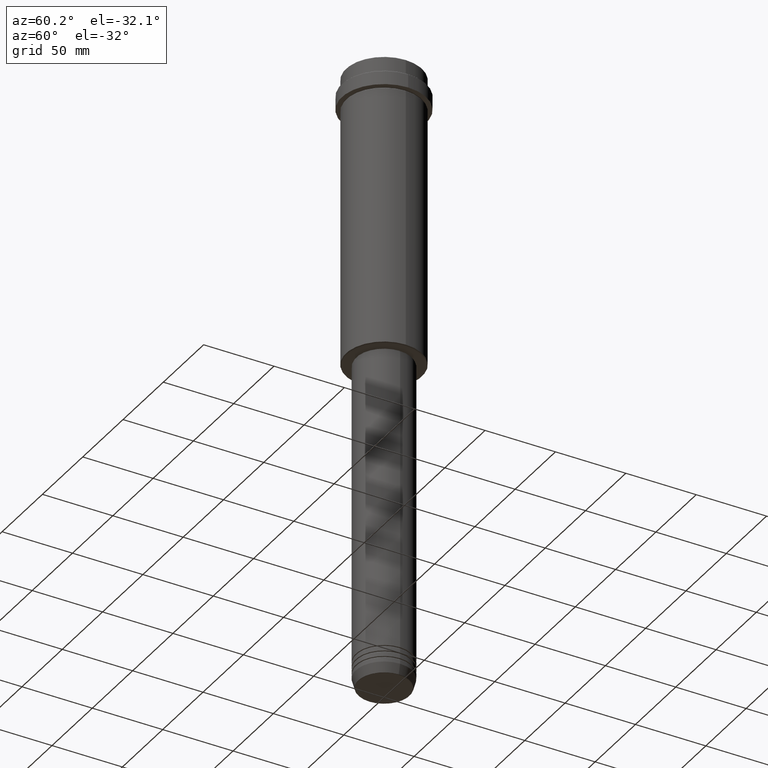
[diagram: clean part render]
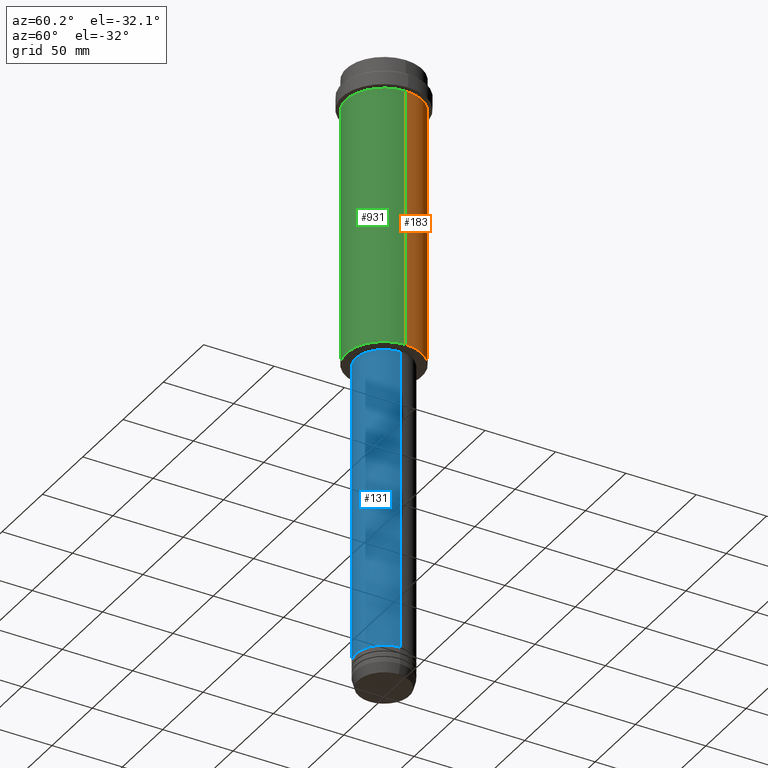
[diagram: same view with three faces highlighted in distinct colors, each labeled with its STEP entity id]
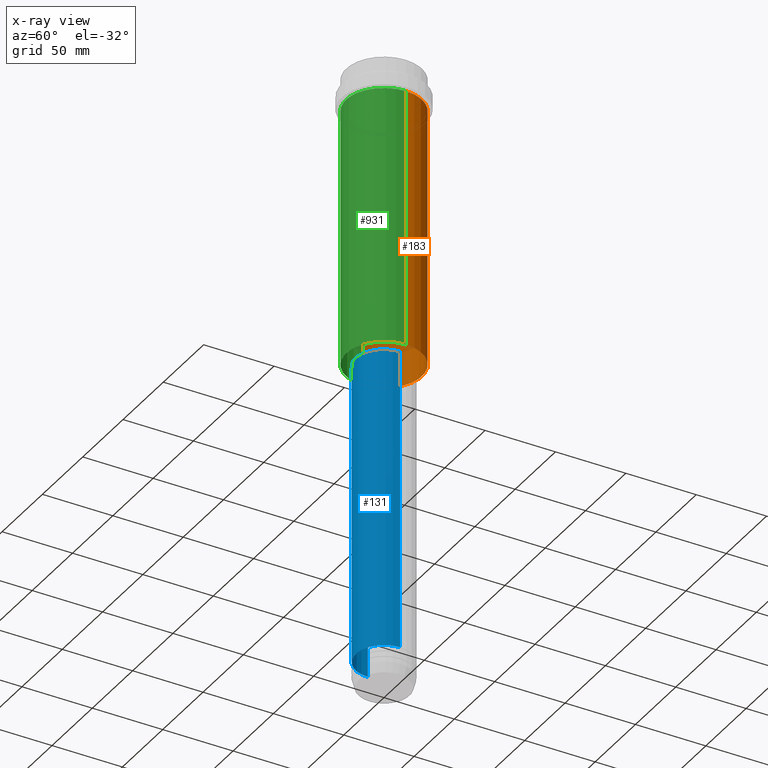
[diagram: x-ray of the same camera — body ghosted, the three highlighted faces saturated]
A machine part, auxiliary view with three faces highlighted in distinct colors.
The next image is the same camera in x-ray (body ghosted, the three faces saturated) — at least one of them is partly hidden behind the body in this view.
Their STEP definitions:

[orange] entity #183 — the highlighted cylindrical surface (partial cylindrical patch) has radius 27 mm, axis along (-0, -0, 1).
#7 = CIRCLE ( 'NONE', #291, 26.99999999999999645 ) ;
#32 = DIRECTION ( 'NONE',  ( -0.000000000000000000, -0.000000000000000000, 1.000000000000000000 ) ) ;
#65 = DIRECTION ( 'NONE',  ( -0.000000000000000000, -0.000000000000000000, 1.000000000000000000 ) ) ;
#83 = DIRECTION ( 'NONE',  ( 1.000000000000000000, 0.000000000000000000, 0.000000000000000000 ) ) ;
#103 = CARTESIAN_POINT ( 'NONE',  ( -26.99999999999999645, 3.306546357697853339E-15, -23.00000000000000000 ) ) ;
#183 = ADVANCED_FACE ( 'NONE', ( #755 ), #546, .T. ) ;
#186 = CARTESIAN_POINT ( 'NONE',  ( -26.99999999999999645, 3.306546357697853339E-15, -207.5000000000000284 ) ) ;
#205 = DIRECTION ( 'NONE',  ( -0.000000000000000000, -0.000000000000000000, 1.000000000000000000 ) ) ;
#224 = DIRECTION ( 'NONE',  ( 1.000000000000000000, 0.000000000000000000, 0.000000000000000000 ) ) ;
#242 = CARTESIAN_POINT ( 'NONE',  ( -26.99999999999999645, 3.306546357697853339E-15, 0.000000000000000000 ) ) ;
#257 = ORIENTED_EDGE ( 'NONE', *, *, #275, .T. ) ;
#264 = VECTOR ( 'NONE', #32, 1000.000000000000000 ) ;
#275 = EDGE_CURVE ( 'NONE', #861, #413, #7, .T. ) ;
#280 = CARTESIAN_POINT ( 'NONE',  ( 0.000000000000000000, 0.000000000000000000, -207.5000000000000284 ) ) ;
#291 = AXIS2_PLACEMENT_3D ( 'NONE', #280, #494, #1146 ) ;
#350 = ORIENTED_EDGE ( 'NONE', *, *, #980, .F. ) ;
#413 = VERTEX_POINT ( 'NONE', #186 ) ;
#453 = AXIS2_PLACEMENT_3D ( 'NONE', #1171, #205, #224 ) ;
#464 = ORIENTED_EDGE ( 'NONE', *, *, #801, .F. ) ;
#494 = DIRECTION ( 'NONE',  ( -0.000000000000000000, -0.000000000000000000, 1.000000000000000000 ) ) ;
#513 = EDGE_CURVE ( 'NONE', #413, #1045, #565, .T. ) ;
#521 = ORIENTED_EDGE ( 'NONE', *, *, #513, .T. ) ;
#546 = CYLINDRICAL_SURFACE ( 'NONE', #453, 26.99999999999999645 ) ;
#565 = LINE ( 'NONE', #242, #264 ) ;
#644 = CARTESIAN_POINT ( 'NONE',  ( 26.99999999999999645, 0.000000000000000000, -23.00000000000000000 ) ) ;
#669 = CARTESIAN_POINT ( 'NONE',  ( 0.000000000000000000, 0.000000000000000000, -23.00000000000000000 ) ) ;
#680 = CIRCLE ( 'NONE', #796, 26.99999999999999645 ) ;
#715 = EDGE_LOOP ( 'NONE', ( #257, #521, #350, #464 ) ) ;
#754 = LINE ( 'NONE', #1384, #813 ) ;
#755 = FACE_OUTER_BOUND ( 'NONE', #715, .T. ) ;
#796 = AXIS2_PLACEMENT_3D ( 'NONE', #669, #881, #83 ) ;
#801 = EDGE_CURVE ( 'NONE', #861, #1009, #754, .T. ) ;
#813 = VECTOR ( 'NONE', #65, 1000.000000000000000 ) ;
#861 = VERTEX_POINT ( 'NONE', #1095 ) ;
#881 = DIRECTION ( 'NONE',  ( -0.000000000000000000, -0.000000000000000000, 1.000000000000000000 ) ) ;
#980 = EDGE_CURVE ( 'NONE', #1009, #1045, #680, .T. ) ;
#1009 = VERTEX_POINT ( 'NONE', #644 ) ;
#1045 = VERTEX_POINT ( 'NONE', #103 ) ;
#1095 = CARTESIAN_POINT ( 'NONE',  ( 26.99999999999999645, 0.000000000000000000, -207.5000000000000284 ) ) ;
#1146 = DIRECTION ( 'NONE',  ( -1.000000000000000000, 0.000000000000000000, 0.000000000000000000 ) ) ;
#1171 = CARTESIAN_POINT ( 'NONE',  ( 0.000000000000000000, 0.000000000000000000, 0.000000000000000000 ) ) ;
#1384 = CARTESIAN_POINT ( 'NONE',  ( 26.99999999999999645, 0.000000000000000000, 0.000000000000000000 ) ) ;

[blue] entity #131 — the highlighted cylindrical surface (edge-blend (fillet) strip) has radius 20 mm, axis along (-0, -0, 1).
#39 = CARTESIAN_POINT ( 'NONE',  ( -19.99999999999999645, 2.449293598294706119E-15, 0.000000000000000000 ) ) ;
#53 = DIRECTION ( 'NONE',  ( -0.000000000000000000, -0.000000000000000000, 1.000000000000000000 ) ) ;
#61 = LINE ( 'NONE', #39, #1169 ) ;
#70 = ORIENTED_EDGE ( 'NONE', *, *, #596, .T. ) ;
#75 = LINE ( 'NONE', #415, #933 ) ;
#96 = CIRCLE ( 'NONE', #381, 20.00000000000000000 ) ;
#108 = CARTESIAN_POINT ( 'NONE',  ( 0.000000000000000000, 0.000000000000000000, -208.9999999999999432 ) ) ;
#113 = ORIENTED_EDGE ( 'NONE', *, *, #493, .F. ) ;
#131 = ADVANCED_FACE ( 'NONE', ( #1276 ), #1385, .T. ) ;
#232 = DIRECTION ( 'NONE',  ( 1.000000000000000000, 0.000000000000000000, 0.000000000000000000 ) ) ;
#307 = CIRCLE ( 'NONE', #908, 19.99999999999999645 ) ;
#346 = DIRECTION ( 'NONE',  ( 1.000000000000000000, 0.000000000000000000, 0.000000000000000000 ) ) ;
#380 = AXIS2_PLACEMENT_3D ( 'NONE', #1187, #417, #232 ) ;
#381 = AXIS2_PLACEMENT_3D ( 'NONE', #690, #53, #1336 ) ;
#415 = CARTESIAN_POINT ( 'NONE',  ( 19.99999999999999645, 0.000000000000000000, 0.000000000000000000 ) ) ;
#417 = DIRECTION ( 'NONE',  ( -0.000000000000000000, -0.000000000000000000, 1.000000000000000000 ) ) ;
#421 = EDGE_CURVE ( 'NONE', #987, #547, #75, .T. ) ;
#458 = VERTEX_POINT ( 'NONE', #1330 ) ;
#493 = EDGE_CURVE ( 'NONE', #1281, #547, #307, .T. ) ;
#547 = VERTEX_POINT ( 'NONE', #914 ) ;
#555 = DIRECTION ( 'NONE',  ( -0.000000000000000000, -0.000000000000000000, 1.000000000000000000 ) ) ;
#576 = EDGE_CURVE ( 'NONE', #458, #1281, #61, .T. ) ;
#589 = ORIENTED_EDGE ( 'NONE', *, *, #576, .F. ) ;
#596 = EDGE_CURVE ( 'NONE', #458, #987, #96, .T. ) ;
#658 = CARTESIAN_POINT ( 'NONE',  ( 20.00000000000000000, 0.000000000000000000, -423.9999999999998863 ) ) ;
#690 = CARTESIAN_POINT ( 'NONE',  ( 0.000000000000000000, 0.000000000000000000, -423.9999999999998863 ) ) ;
#704 = ORIENTED_EDGE ( 'NONE', *, *, #421, .T. ) ;
#759 = DIRECTION ( 'NONE',  ( -0.000000000000000000, -0.000000000000000000, 1.000000000000000000 ) ) ;
#779 = EDGE_LOOP ( 'NONE', ( #589, #70, #704, #113 ) ) ;
#819 = DIRECTION ( 'NONE',  ( -0.000000000000000000, -0.000000000000000000, 1.000000000000000000 ) ) ;
#908 = AXIS2_PLACEMENT_3D ( 'NONE', #108, #555, #346 ) ;
#914 = CARTESIAN_POINT ( 'NONE',  ( 19.99999999999999645, 0.000000000000000000, -208.9999999999999432 ) ) ;
#933 = VECTOR ( 'NONE', #759, 1000.000000000000000 ) ;
#944 = CARTESIAN_POINT ( 'NONE',  ( -19.99999999999999645, 2.449293598294706119E-15, -208.9999999999999432 ) ) ;
#987 = VERTEX_POINT ( 'NONE', #658 ) ;
#1169 = VECTOR ( 'NONE', #819, 1000.000000000000000 ) ;
#1187 = CARTESIAN_POINT ( 'NONE',  ( 0.000000000000000000, 0.000000000000000000, 0.000000000000000000 ) ) ;
#1276 = FACE_OUTER_BOUND ( 'NONE', #779, .T. ) ;
#1281 = VERTEX_POINT ( 'NONE', #944 ) ;
#1330 = CARTESIAN_POINT ( 'NONE',  ( -20.00000000000000000, 2.449293598294706513E-15, -423.9999999999998863 ) ) ;
#1336 = DIRECTION ( 'NONE',  ( 1.000000000000000000, 0.000000000000000000, 0.000000000000000000 ) ) ;
#1385 = CYLINDRICAL_SURFACE ( 'NONE', #380, 19.99999999999999645 ) ;

[green] entity #931 — the highlighted cylindrical surface (partial cylindrical patch) has radius 27 mm, axis along (-0, -0, 1).
#32 = DIRECTION ( 'NONE',  ( -0.000000000000000000, -0.000000000000000000, 1.000000000000000000 ) ) ;
#65 = DIRECTION ( 'NONE',  ( -0.000000000000000000, -0.000000000000000000, 1.000000000000000000 ) ) ;
#68 = ORIENTED_EDGE ( 'NONE', *, *, #409, .F. ) ;
#72 = CIRCLE ( 'NONE', #817, 26.99999999999999645 ) ;
#103 = CARTESIAN_POINT ( 'NONE',  ( -26.99999999999999645, 3.306546357697853339E-15, -23.00000000000000000 ) ) ;
#180 = CARTESIAN_POINT ( 'NONE',  ( 0.000000000000000000, 0.000000000000000000, -207.5000000000000284 ) ) ;
#186 = CARTESIAN_POINT ( 'NONE',  ( -26.99999999999999645, 3.306546357697853339E-15, -207.5000000000000284 ) ) ;
#211 = DIRECTION ( 'NONE',  ( -0.000000000000000000, -0.000000000000000000, 1.000000000000000000 ) ) ;
#220 = AXIS2_PLACEMENT_3D ( 'NONE', #1192, #211, #1077 ) ;
#242 = CARTESIAN_POINT ( 'NONE',  ( -26.99999999999999645, 3.306546357697853339E-15, 0.000000000000000000 ) ) ;
#264 = VECTOR ( 'NONE', #32, 1000.000000000000000 ) ;
#283 = EDGE_LOOP ( 'NONE', ( #831, #392, #1190, #68 ) ) ;
#297 = DIRECTION ( 'NONE',  ( 1.000000000000000000, 0.000000000000000000, 0.000000000000000000 ) ) ;
#321 = DIRECTION ( 'NONE',  ( -0.000000000000000000, -0.000000000000000000, 1.000000000000000000 ) ) ;
#336 = EDGE_CURVE ( 'NONE', #413, #861, #1246, .T. ) ;
#392 = ORIENTED_EDGE ( 'NONE', *, *, #336, .T. ) ;
#409 = EDGE_CURVE ( 'NONE', #1045, #1009, #72, .T. ) ;
#412 = DIRECTION ( 'NONE',  ( -1.000000000000000000, 0.000000000000000000, 0.000000000000000000 ) ) ;
#413 = VERTEX_POINT ( 'NONE', #186 ) ;
#513 = EDGE_CURVE ( 'NONE', #413, #1045, #565, .T. ) ;
#565 = LINE ( 'NONE', #242, #264 ) ;
#644 = CARTESIAN_POINT ( 'NONE',  ( 26.99999999999999645, 0.000000000000000000, -23.00000000000000000 ) ) ;
#754 = LINE ( 'NONE', #1384, #813 ) ;
#801 = EDGE_CURVE ( 'NONE', #861, #1009, #754, .T. ) ;
#810 = AXIS2_PLACEMENT_3D ( 'NONE', #180, #1156, #412 ) ;
#813 = VECTOR ( 'NONE', #65, 1000.000000000000000 ) ;
#817 = AXIS2_PLACEMENT_3D ( 'NONE', #1394, #321, #297 ) ;
#831 = ORIENTED_EDGE ( 'NONE', *, *, #513, .F. ) ;
#853 = FACE_OUTER_BOUND ( 'NONE', #283, .T. ) ;
#861 = VERTEX_POINT ( 'NONE', #1095 ) ;
#931 = ADVANCED_FACE ( 'NONE', ( #853 ), #992, .T. ) ;
#992 = CYLINDRICAL_SURFACE ( 'NONE', #220, 26.99999999999999645 ) ;
#1009 = VERTEX_POINT ( 'NONE', #644 ) ;
#1045 = VERTEX_POINT ( 'NONE', #103 ) ;
#1077 = DIRECTION ( 'NONE',  ( 1.000000000000000000, 0.000000000000000000, 0.000000000000000000 ) ) ;
#1095 = CARTESIAN_POINT ( 'NONE',  ( 26.99999999999999645, 0.000000000000000000, -207.5000000000000284 ) ) ;
#1156 = DIRECTION ( 'NONE',  ( -0.000000000000000000, -0.000000000000000000, 1.000000000000000000 ) ) ;
#1190 = ORIENTED_EDGE ( 'NONE', *, *, #801, .T. ) ;
#1192 = CARTESIAN_POINT ( 'NONE',  ( 0.000000000000000000, 0.000000000000000000, 0.000000000000000000 ) ) ;
#1246 = CIRCLE ( 'NONE', #810, 26.99999999999999645 ) ;
#1384 = CARTESIAN_POINT ( 'NONE',  ( 26.99999999999999645, 0.000000000000000000, 0.000000000000000000 ) ) ;
#1394 = CARTESIAN_POINT ( 'NONE',  ( 0.000000000000000000, 0.000000000000000000, -23.00000000000000000 ) ) ;